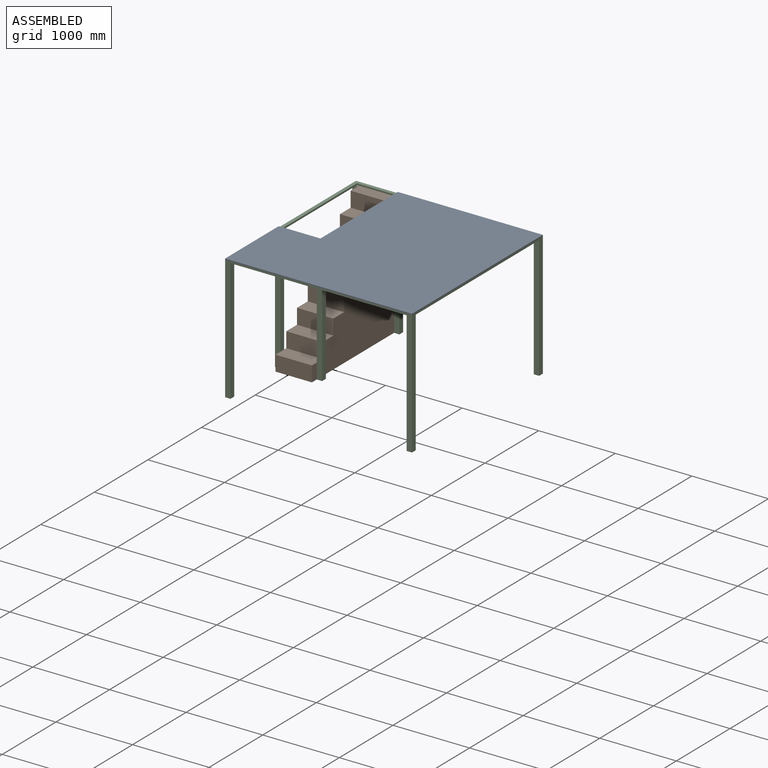
[diagram: assembled view]
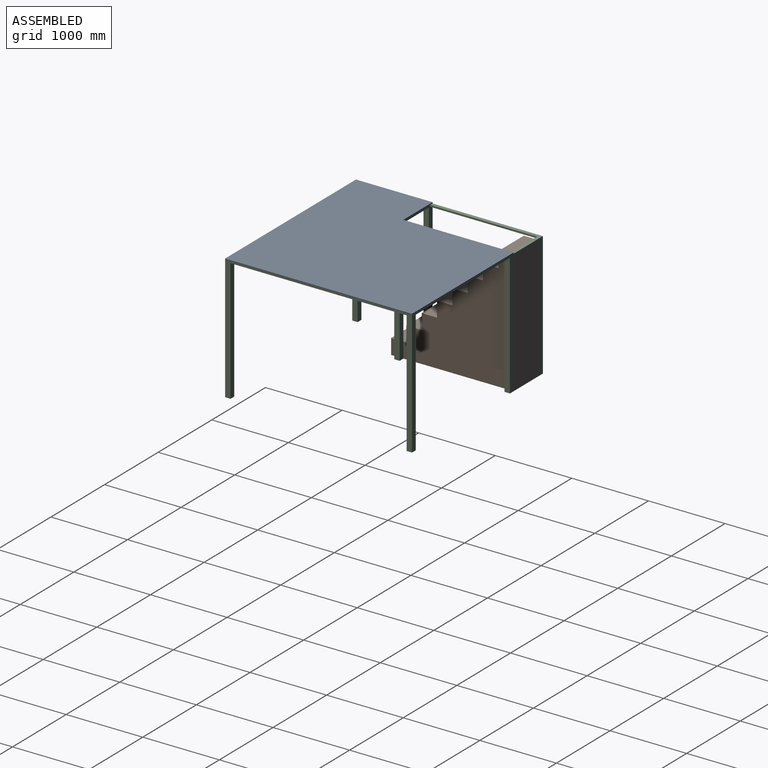
[diagram: assembled view, second angle]
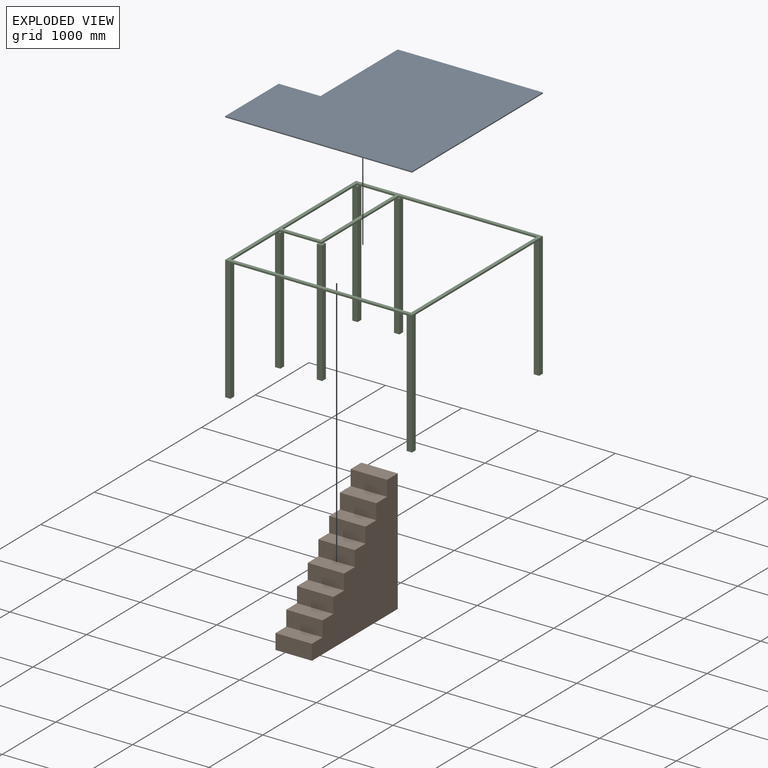
[diagram: exploded view]
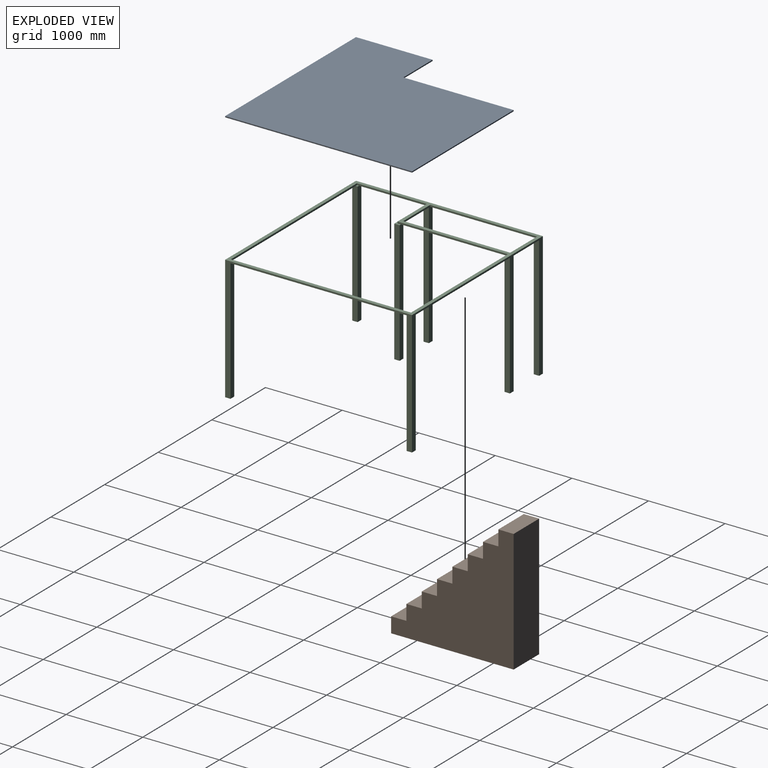
[diagram: exploded view, second angle]
ASSEMBLY  parts=3 mates=2
PART A: 8 faces, bbox 2440x2440x15 mm
  f0: plane 545x15mm, normal (0,1,0), area 8175mm2, adj f1,f5,f6,f7
  f1: plane 1000x15mm, normal (-1,0,0), area 15000mm2, adj f0,f2,f6,f7
  f2: plane 2440x15mm, normal (0,-1,0), area 36600mm2, adj f1,f3,f6,f7
  f3: plane 2440x15mm, normal (1,0,0), area 36600mm2, adj f2,f4,f6,f7
  f4: plane 1895x15mm, normal (0,1,0), area 28425mm2, adj f3,f5,f6,f7
  f5: plane 1440x15mm, normal (-1,0,0), area 21600mm2, adj f0,f4,f6,f7
  f6: plane 2440x2440mm, normal (0,0,1), area 5168800mm2, adj f0,f1,f2,f3,f4,f5
  f7: plane 2440x2440mm, normal (0,0,-1), area 5168800mm2, adj f0,f1,f2,f3,f4,f5
PART B: 20 faces, bbox 475x1600x1600 mm
  f0: plane 1600x475mm, normal (0,1,0), area 760000mm2, adj f1,f17,f18,f19
  f1: plane 475x200mm, normal (0,0,1), area 95000mm2, adj f0,f2,f18,f19
  f2: plane 475x200mm, normal (0,-1,0), area 95000mm2, adj f1,f3,f18,f19
  f3: plane 475x200mm, normal (0,0,1), area 95000mm2, adj f2,f4,f18,f19
  f4: plane 475x200mm, normal (0,-1,0), area 95000mm2, adj f3,f5,f18,f19
  f5: plane 475x200mm, normal (0,0,1), area 95000mm2, adj f4,f6,f18,f19
  f6: plane 475x200mm, normal (0,-1,0), area 95000mm2, adj f5,f7,f18,f19
  f7: plane 475x200mm, normal (0,0,1), area 95000mm2, adj f6,f8,f18,f19
  f8: plane 475x200mm, normal (0,-1,0), area 95000mm2, adj f7,f9,f18,f19
  f9: plane 475x200mm, normal (0,0,1), area 95000mm2, adj f8,f10,f18,f19
  f10: plane 475x200mm, normal (0,-1,0), area 95000mm2, adj f9,f11,f18,f19
  f11: plane 475x200mm, normal (0,0,1), area 95000mm2, adj f10,f12,f18,f19
  f12: plane 475x200mm, normal (0,-1,0), area 95000mm2, adj f11,f13,f18,f19
  f13: plane 475x200mm, normal (0,0,1), area 95000mm2, adj f12,f14,f18,f19
  f14: plane 475x200mm, normal (0,-1,0), area 95000mm2, adj f13,f15,f18,f19
  f15: plane 475x200mm, normal (0,0,1), area 95000mm2, adj f14,f16,f18,f19
  f16: plane 475x200mm, normal (0,-1,0), area 95000mm2, adj f15,f17,f18,f19
  f17: plane 1600x475mm, normal (0,0,-1), area 760000mm2, adj f0,f16,f18,f19
  f18: plane 1600x1600mm, normal (1,0,0), area 1440000mm2, adj f0,f1,f2,f3,f4,f5,f6,f7
  f19: plane 1600x1600mm, normal (-1,0,0), area 1440000mm2, adj f0,f1,f2,f3,f4,f5,f6,f7
PART C: 53 faces, bbox 2440x2440x1622 mm
  f0: plane 70x70mm, normal (0,0,1), area 2875mm2, adj f1,f2,f3,f4,f19,f20
  f1: plane 1600x70mm, normal (0,1,0), area 112000mm2, adj f0,f2,f4,f5,f10
  f2: plane 1600x70mm, normal (-1,0,0), area 112000mm2, adj f0,f1,f3,f5,f6
  f3: plane 1600x70mm, normal (0,-1,0), area 112000mm2, adj f0,f2,f4,f5
  f4: plane 1600x70mm, normal (1,0,0), area 112000mm2, adj f0,f1,f3,f5
  f5: plane 70x70mm, normal (0,0,-1), area 4900mm2, adj f1,f2,f3,f4
  f6: plane 475x45mm, normal (0,0,-1), area 21375mm2, adj f2,f19,f26,f30
  f7: plane 475x45mm, normal (0,0,-1), area 21375mm2, adj f14,f23,f24,f50
  f8: plane 1370x45mm, normal (0,0,-1), area 61650mm2, adj f15,f22,f26,f49
  f9: plane 1755x45mm, normal (0,0,-1), area 78975mm2, adj f14,f21,f41,f46
  f10: plane 1370x45mm, normal (0,0,-1), area 61650mm2, adj f1,f20,f24,f45
  f11: plane 2300x45mm, normal (0,0,-1), area 103500mm2, adj f25,f27,f37,f42
  f12: plane 860x45mm, normal (0,0,-1), area 38700mm2, adj f15,f18,f29,f33
  f13: plane 2300x45mm, normal (0,0,-1), area 103500mm2, adj f16,f17,f34,f38
  f14: plane 2440x1622mm, normal (0,1,0), area 389680mm2, adj f7,f9,f15,f24,f27,f28,f41,f44
  f15: plane 2440x1622mm, normal (-1,0,0), area 389680mm2, adj f8,f12,f14,f16,f26,f28,f29,f32
  f16: plane 2440x1622mm, normal (0,-1,0), area 277680mm2, adj f13,f15,f27,f28,f34,f36,f38,f40
  f17: plane 2350x22mm, normal (0,1,0), area 51700mm2, adj f13,f18,f25,f28,f35,f39
  f18: plane 910x22mm, normal (1,0,0), area 20020mm2, adj f12,f17,f19,f28,f31,f35
  f19: plane 545x22mm, normal (0,-1,0), area 11990mm2, adj f0,f6,f18,f20,f28,f31
  f20: plane 1440x22mm, normal (1,0,0), area 31680mm2, adj f0,f10,f19,f21,f28,f47
  f21: plane 1805x22mm, normal (0,-1,0), area 39710mm2, adj f9,f20,f25,f28,f43,f47
  f22: plane 1395x22mm, normal (1,0,0), area 30690mm2, adj f8,f23,f26,f28,f51
  f23: plane 500x22mm, normal (0,-1,0), area 11000mm2, adj f7,f22,f24,f28,f51
  f24: plane 1622x1440mm, normal (-1,0,0), area 142690mm2, adj f7,f10,f14,f23,f26,f28,f45,f48
  f25: plane 2350x22mm, normal (-1,0,0), area 51700mm2, adj f11,f17,f21,f28,f39,f43
  f26: plane 1622x545mm, normal (0,1,0), area 123000mm2, adj f6,f8,f15,f22,f24,f28,f30,f32
  f27: plane 2440x1622mm, normal (1,0,0), area 277680mm2, adj f11,f14,f16,f28,f37,f40,f42,f44
  f28: plane 2440x2440mm, normal (0,0,1), area 518400mm2, adj f14,f15,f16,f17,f18,f19,f20,f21
  f29: plane 1600x70mm, normal (0,-1,0), area 112000mm2, adj f12,f15,f30,f31,f32
  f30: plane 1600x70mm, normal (1,0,0), area 112000mm2, adj f6,f26,f29,f31,f32
  f31: plane 25x25mm, normal (0,0,1), area 625mm2, adj f18,f19,f29,f30
  f32: plane 70x70mm, normal (0,0,-1), area 4900mm2, adj f15,f26,f29,f30
  f33: plane 1600x70mm, normal (0,1,0), area 112000mm2, adj f12,f15,f34,f35,f36
  f34: plane 1600x70mm, normal (1,0,0), area 112000mm2, adj f13,f16,f33,f35,f36
  f35: plane 25x25mm, normal (0,0,1), area 625mm2, adj f17,f18,f33,f34
  f36: plane 70x70mm, normal (0,0,-1), area 4900mm2, adj f15,f16,f33,f34
  f37: plane 1600x70mm, normal (0,1,0), area 112000mm2, adj f11,f27,f38,f39,f40
  f38: plane 1600x70mm, normal (-1,0,0), area 112000mm2, adj f13,f16,f37,f39,f40
  f39: plane 25x25mm, normal (0,0,1), area 625mm2, adj f17,f25,f37,f38
  f40: plane 70x70mm, normal (0,0,-1), area 4900mm2, adj f16,f27,f37,f38
  f41: plane 1600x70mm, normal (-1,0,0), area 112000mm2, adj f9,f14,f42,f43,f44
  f42: plane 1600x70mm, normal (0,-1,0), area 112000mm2, adj f11,f27,f41,f43,f44
  f43: plane 25x25mm, normal (0,0,1), area 625mm2, adj f21,f25,f41,f42
  f44: plane 70x70mm, normal (0,0,-1), area 4900mm2, adj f14,f27,f41,f42
  f45: plane 1600x70mm, normal (0,-1,0), area 112000mm2, adj f10,f24,f46,f47,f48
  f46: plane 1600x70mm, normal (1,0,0), area 112000mm2, adj f9,f14,f45,f47,f48
  f47: plane 25x25mm, normal (0,0,1), area 625mm2, adj f20,f21,f45,f46
  f48: plane 70x70mm, normal (0,0,-1), area 4900mm2, adj f14,f24,f45,f46
  f49: plane 1600x70mm, normal (0,-1,0), area 112000mm2, adj f8,f15,f50,f51,f52
  f50: plane 1600x70mm, normal (1,0,0), area 112000mm2, adj f7,f14,f49,f51,f52
  f51: plane 25x25mm, normal (0,0,1), area 625mm2, adj f22,f23,f49,f50
  f52: plane 70x70mm, normal (0,0,-1), area 4900mm2, adj f14,f15,f49,f50
PLACE A t=(99.6,-880.81,-1240.08)mm
PLACE B t=(-1050.4,95.4,-1414.19)mm
PLACE C t=(99.6,-880.81,-2862.08)mm
MATE fastened C.f7 <-> B.f1  axis (0,0,-1) through (-575.4,339.19,-1262.08)mm
MATE fastened C.f28 <-> A.f7  axis (0,0,1) through (1319.6,339.19,-1240.08)mm
